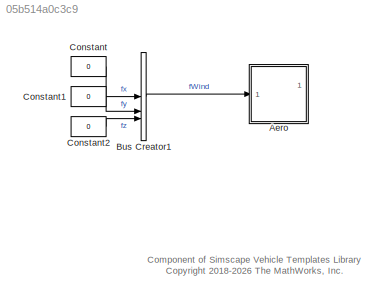
MODEL slx_05b514a0c3c9
KIND library
CONFIG SolverName = ode23t
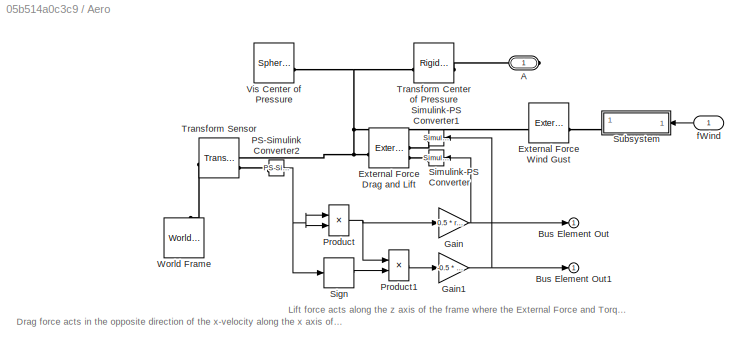
BLOCK [SubSystem] Aero
BLOCK [PMIOPort] Aero/A
  Side = Right
BLOCK [Outport] Aero/Bus Element Out
  VectorParamsAs1DForOutWhenUnconnected = off
BLOCK [Outport] Aero/Bus Element Out1
  VectorParamsAs1DForOutWhenUnconnected = off
BLOCK [Reference] Aero/External Force Drag and Lift  REF=sm_lib/Forces and
Torques/External Force
and Torque
  SourceBlock = sm_lib/Forces and\nTorques/External Force\nand Torque
  SourceType = External Force\nand Torque
BLOCK [Reference] Aero/External Force Wind Gust  REF=sm_lib/Forces and
Torques/External Force
and Torque
  SourceBlock = sm_lib/Forces and\nTorques/External Force\nand Torque
  SourceType = External Force\nand Torque
BLOCK [Gain] Aero/Gain
  Gain = 0.5 * rho * CL * A
BLOCK [Gain] Aero/Gain1
  Gain = -0.5 * rho * CD * A
BLOCK [Reference] Aero/PS-Simulink Converter2  REF=nesl_utility/PS-Simulink
Converter
  SourceBlock = nesl_utility/PS-Simulink\nConverter
  SourceType = PS-Simulink\nConverter
BLOCK [Product] Aero/Product
BLOCK [Product] Aero/Product1
BLOCK [Signum] Aero/Sign
  ZeroCross = off
BLOCK [Reference] Aero/Simulink-PS Converter  REF=nesl_utility/Simulink-PS
Converter
  NameLocation = top
  SourceBlock = nesl_utility/Simulink-PS\nConverter
  SourceType = Simulink-PS\nConverter
BLOCK [Reference] Aero/Simulink-PS Converter1  REF=nesl_utility/Simulink-PS
Converter
  NameLocation = top
  SourceBlock = nesl_utility/Simulink-PS\nConverter
  SourceType = Simulink-PS\nConverter
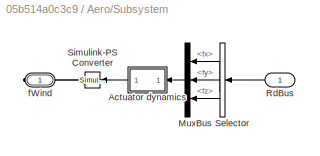
BLOCK [SubSystem] Aero/Subsystem
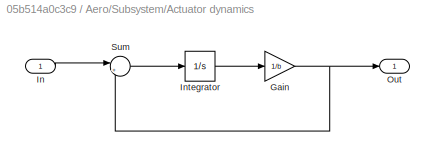
BLOCK [SubSystem] Aero/Subsystem/Actuator dynamics
BLOCK [Gain] Aero/Subsystem/Actuator dynamics/Gain
  Gain = 1/b
BLOCK [Inport] Aero/Subsystem/Actuator dynamics/In
BLOCK [Integrator] Aero/Subsystem/Actuator dynamics/Integrator
  InitialCondition = x_initial*b
BLOCK [Outport] Aero/Subsystem/Actuator dynamics/Out
  VectorParamsAs1DForOutWhenUnconnected = off
BLOCK [Sum] Aero/Subsystem/Actuator dynamics/Sum
  InputSameDT = on
  Inputs = |+-
  OutDataTypeStr = Inherit: Same as first input
  SaturateOnIntegerOverflow = on
BLOCK [BusSelector] Aero/Subsystem/Bus Selector
  OutputSignals = fx,fy,fz
BLOCK [Mux] Aero/Subsystem/Mux
  DisplayOption = bar
  Inputs = 3
BLOCK [Inport] Aero/Subsystem/RdBus
BLOCK [Reference] Aero/Subsystem/Simulink-PS Converter  REF=nesl_utility/Simulink-PS
Converter
  SourceBlock = nesl_utility/Simulink-PS\nConverter
  SourceType = Simulink-PS\nConverter
BLOCK [PMIOPort] Aero/Subsystem/fWind
  Side = Right
BLOCK [Reference] Aero/Transform Center of Pressure  REF=sm_lib/Frames and
Transforms/Rigid
Transform
  SourceBlock = sm_lib/Frames and\nTransforms/Rigid\nTransform
  SourceType = Rigid\nTransform
BLOCK [Reference] Aero/Transform Sensor  REF=sm_lib/Frames and
Transforms/Transform
Sensor
  SourceBlock = sm_lib/Frames and\nTransforms/Transform\nSensor
  SourceType = Transform\nSensor
BLOCK [Reference] Aero/Vis Center of Pressure  REF=sm_lib/Body Elements/Spherical Solid
  SourceBlock = sm_lib/Body Elements/Spherical Solid
  SourceType = Spherical Solid
BLOCK [Reference] Aero/World Frame  REF=sm_lib/Frames and
Transforms/World Frame
  NameLocation = right
  SourceBlock = sm_lib/Frames and\nTransforms/World Frame
  SourceType = World Frame
BLOCK [Inport] Aero/fWind
BLOCK [BusCreator] Bus Creator1
  DisplayOption = bar
  InheritFromInputs = on
  Inputs = 3
BLOCK [Constant] Constant
  Value = 0
BLOCK [Constant] Constant1
  Value = 0
BLOCK [Constant] Constant2
  Value = 0
ANNOTATION (root): Component of Simscape Vehicle Templates Library <copyright redacted>
ANNOTATION Aero: Drag force acts in the opposite direction of the x-velocity along the x axis of the frame where the External Force and Torque is attached
ANNOTATION Aero: Lift force acts along the z axis of the frame where the External Force and Torque is attached. Direction is set by the Lift Coefficient.
NET Aero/Gain1:1 -> Aero/Bus Element Out1:1, Aero/Simulink-PS Converter1:1
NET Aero/Gain:1 -> Aero/Bus Element Out:1, Aero/Simulink-PS Converter:1
NET Aero/PS-Simulink Converter2:1 -> Aero/Product:1, Aero/Product:2, Aero/Sign:1
LINE Aero/Product1:1 -> Aero/Gain1:1
NET Aero/Product:1 -> Aero/Gain:1, Aero/Product1:1
LINE Aero/Sign:1 -> Aero/Product1:2
NET Aero/Subsystem/Actuator dynamics/Gain:1 -> Aero/Subsystem/Actuator dynamics/Out:1, Aero/Subsystem/Actuator dynamics/Sum:2
LINE Aero/Subsystem/Actuator dynamics/In:1 -> Aero/Subsystem/Actuator dynamics/Sum:1
LINE Aero/Subsystem/Actuator dynamics/Integrator:1 -> Aero/Subsystem/Actuator dynamics/Gain:1
LINE Aero/Subsystem/Actuator dynamics/Sum:1 -> Aero/Subsystem/Actuator dynamics/Integrator:1
LINE Aero/Subsystem/Actuator dynamics:1 -> Aero/Subsystem/Simulink-PS Converter:1
LINE Aero/Subsystem/Bus Selector:1 -> Aero/Subsystem/Mux:1
LINE Aero/Subsystem/Bus Selector:2 -> Aero/Subsystem/Mux:2
LINE Aero/Subsystem/Bus Selector:3 -> Aero/Subsystem/Mux:3
LINE Aero/Subsystem/Mux:1 -> Aero/Subsystem/Actuator dynamics:1
LINE Aero/Subsystem/RdBus:1 -> Aero/Subsystem/Bus Selector:1
LINE Aero/fWind:1 -> Aero/Subsystem:1
LINE Bus Creator1:1 -> Aero:1
LINE Constant1:1 -> Bus Creator1:2
LINE Constant2:1 -> Bus Creator1:3
LINE Constant:1 -> Bus Creator1:1
PLINE Aero/A:RConn1 -- Aero/Transform Center of Pressure:LConn1
PLINE Aero/External Force Drag and Lift:LConn1 -- Aero/Simulink-PS Converter1:RConn1
PLINE Aero/External Force Drag and Lift:LConn2 -- Aero/Simulink-PS Converter:RConn1
PNET net1: Aero/External Force Drag and Lift:RConn1 -- Aero/External Force Wind Gust:RConn1 -- Aero/Transform Center of Pressure:RConn1 -- Aero/Transform Sensor:RConn1 -- Aero/Vis Center of Pressure:RConn1
PLINE Aero/External Force Wind Gust:LConn1 -- Aero/Subsystem:RConn1
PLINE Aero/PS-Simulink Converter2:LConn1 -- Aero/Transform Sensor:RConn2
PLINE Aero/Subsystem/Simulink-PS Converter:RConn1 -- Aero/Subsystem/fWind:RConn1
PLINE Aero/Transform Sensor:LConn1 -- Aero/World Frame:RConn1
note: NET lines group one-source signal fan-out (src -> all destinations, sorted); 1:1 wires keep LINE; PNET lines group multi-terminal physical nets as a canonical sorted terminal list (undirected conserving connections); 2-terminal nets keep the pairwise PLINE form
